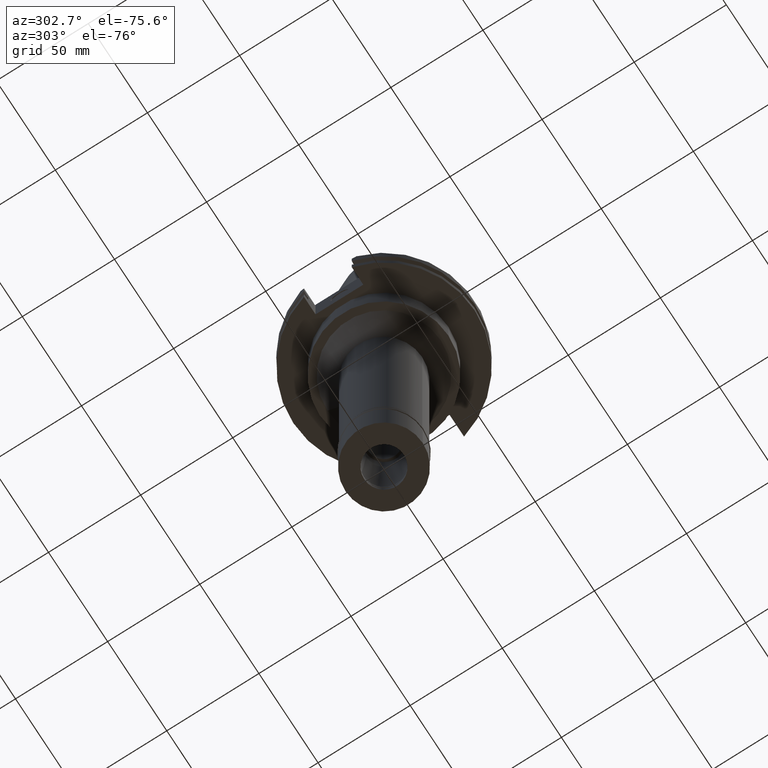
[diagram: clean part render]
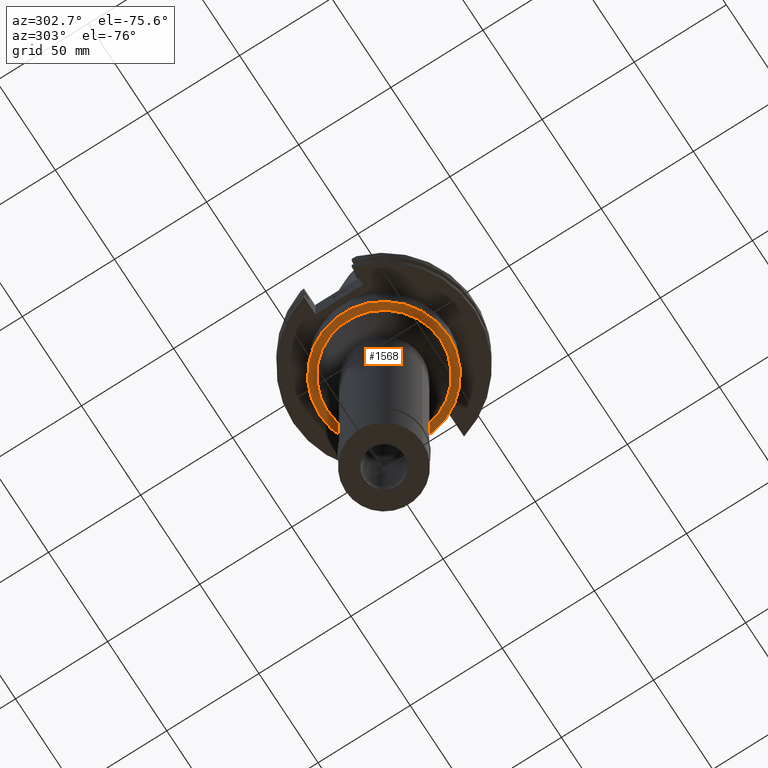
[diagram: same view with one face highlighted and labeled with its STEP entity id]
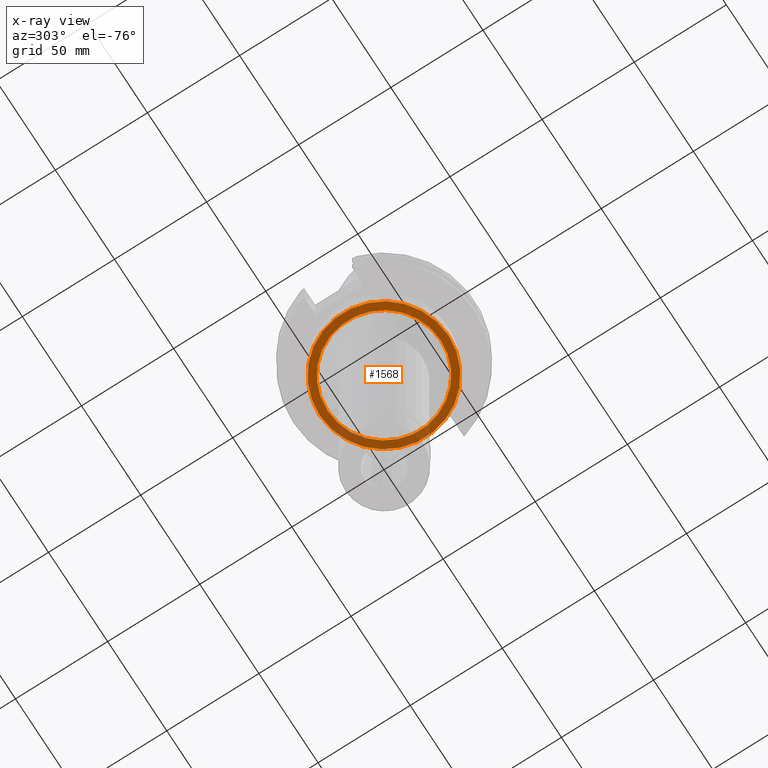
[diagram: x-ray of the same camera — body ghosted, the highlighted face saturated]
A machine part, auxiliary view. The second image highlights one B-rep face of the part: STEP entity #1568.
The next image is the same camera in x-ray: the body ghosted, the highlighted face saturated — about 22% of this face is hidden behind the body in this view.
In plain terms, the highlighted planar face has unit normal (0, 0, -1).
Its self-contained STEP definition (entity closure, byte-faithful):
#106 = VERTEX_POINT ( 'NONE', #1243 ) ;
#155 = CIRCLE ( 'NONE', #1707, 34.92499999999999716 ) ;
#169 = VERTEX_POINT ( 'NONE', #1880 ) ;
#180 = VERTEX_POINT ( 'NONE', #1612 ) ;
#244 = CIRCLE ( 'NONE', #569, 34.92499999999999716 ) ;
#331 = AXIS2_PLACEMENT_3D ( 'NONE', #630, #2438, #2970 ) ;
#415 = ORIENTED_EDGE ( 'NONE', *, *, #2466, .F. ) ;
#505 = CARTESIAN_POINT ( 'NONE',  ( 0.0000000000000000000, 2.648788561875999721E-14, -35.00000000000000000 ) ) ;
#569 = AXIS2_PLACEMENT_3D ( 'NONE', #1483, #2245, #935 ) ;
#630 = CARTESIAN_POINT ( 'NONE',  ( 0.0000000000000000000, 0.0000000000000000000, -35.00000000000000000 ) ) ;
#664 = CARTESIAN_POINT ( 'NONE',  ( 0.0000000000000000000, 0.0000000000000000000, -35.00000000000000000 ) ) ;
#703 = EDGE_LOOP ( 'NONE', ( #415, #2480 ) ) ;
#789 = ORIENTED_EDGE ( 'NONE', *, *, #3296, .F. ) ;
#924 = CIRCLE ( 'NONE', #331, 30.75000000000000000 ) ;
#935 = DIRECTION ( 'NONE',  ( 0.0000000000000000000, 1.000000000000000000, 0.0000000000000000000 ) ) ;
#1013 = DIRECTION ( 'NONE',  ( 0.0000000000000000000, -1.000000000000000000, 0.0000000000000000000 ) ) ;
#1031 = FACE_BOUND ( 'NONE', #703, .T. ) ;
#1059 = DIRECTION ( 'NONE',  ( 0.0000000000000000000, 0.0000000000000000000, 1.000000000000000000 ) ) ;
#1243 = CARTESIAN_POINT ( 'NONE',  ( 0.0000000000000000000, 30.75000000000000000, -35.00000000000000000 ) ) ;
#1362 = EDGE_CURVE ( 'NONE', #169, #3262, #244, .T. ) ;
#1405 = EDGE_LOOP ( 'NONE', ( #2258, #789 ) ) ;
#1422 = EDGE_CURVE ( 'NONE', #180, #106, #2726, .T. ) ;
#1483 = CARTESIAN_POINT ( 'NONE',  ( 0.0000000000000000000, 2.648788561875999721E-14, -35.00000000000000000 ) ) ;
#1523 = DIRECTION ( 'NONE',  ( 0.0000000000000000000, -1.000000000000000000, 0.0000000000000000000 ) ) ;
#1527 = CARTESIAN_POINT ( 'NONE',  ( 0.0000000000000000000, 0.0000000000000000000, -35.00000000000000000 ) ) ;
#1568 = ADVANCED_FACE ( 'NONE', ( #2265, #1031 ), #3051, .T. ) ;
#1612 = CARTESIAN_POINT ( 'NONE',  ( 0.0000000000000000000, -30.75000000000000000, -35.00000000000000000 ) ) ;
#1679 = DIRECTION ( 'NONE',  ( 0.0000000000000000000, -1.000000000000000000, 0.0000000000000000000 ) ) ;
#1707 = AXIS2_PLACEMENT_3D ( 'NONE', #505, #1059, #1523 ) ;
#1745 = DIRECTION ( 'NONE',  ( 0.0000000000000000000, 0.0000000000000000000, -1.000000000000000000 ) ) ;
#1880 = CARTESIAN_POINT ( 'NONE',  ( 0.0000000000000000000, 34.92499999999999716, -35.00000000000000000 ) ) ;
#2245 = DIRECTION ( 'NONE',  ( 0.0000000000000000000, 0.0000000000000000000, 1.000000000000000000 ) ) ;
#2258 = ORIENTED_EDGE ( 'NONE', *, *, #1362, .F. ) ;
#2265 = FACE_OUTER_BOUND ( 'NONE', #1405, .T. ) ;
#2415 = AXIS2_PLACEMENT_3D ( 'NONE', #664, #3266, #1679 ) ;
#2438 = DIRECTION ( 'NONE',  ( 0.0000000000000000000, 0.0000000000000000000, -1.000000000000000000 ) ) ;
#2466 = EDGE_CURVE ( 'NONE', #106, #180, #924, .T. ) ;
#2480 = ORIENTED_EDGE ( 'NONE', *, *, #1422, .F. ) ;
#2726 = CIRCLE ( 'NONE', #2415, 30.75000000000000000 ) ;
#2812 = CARTESIAN_POINT ( 'NONE',  ( 0.0000000000000000000, -34.92499999999999716, -35.00000000000000000 ) ) ;
#2970 = DIRECTION ( 'NONE',  ( 0.0000000000000000000, 1.000000000000000000, 0.0000000000000000000 ) ) ;
#3051 = PLANE ( 'NONE',  #3316 ) ;
#3262 = VERTEX_POINT ( 'NONE', #2812 ) ;
#3266 = DIRECTION ( 'NONE',  ( 0.0000000000000000000, 0.0000000000000000000, -1.000000000000000000 ) ) ;
#3296 = EDGE_CURVE ( 'NONE', #3262, #169, #155, .T. ) ;
#3316 = AXIS2_PLACEMENT_3D ( 'NONE', #1527, #1745, #1013 ) ;